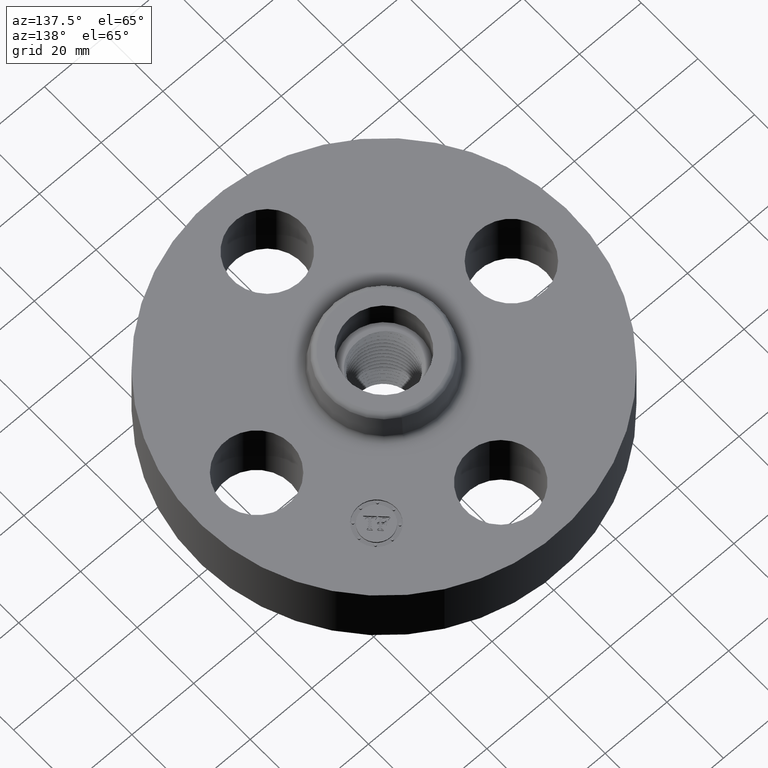
[diagram: clean part render]
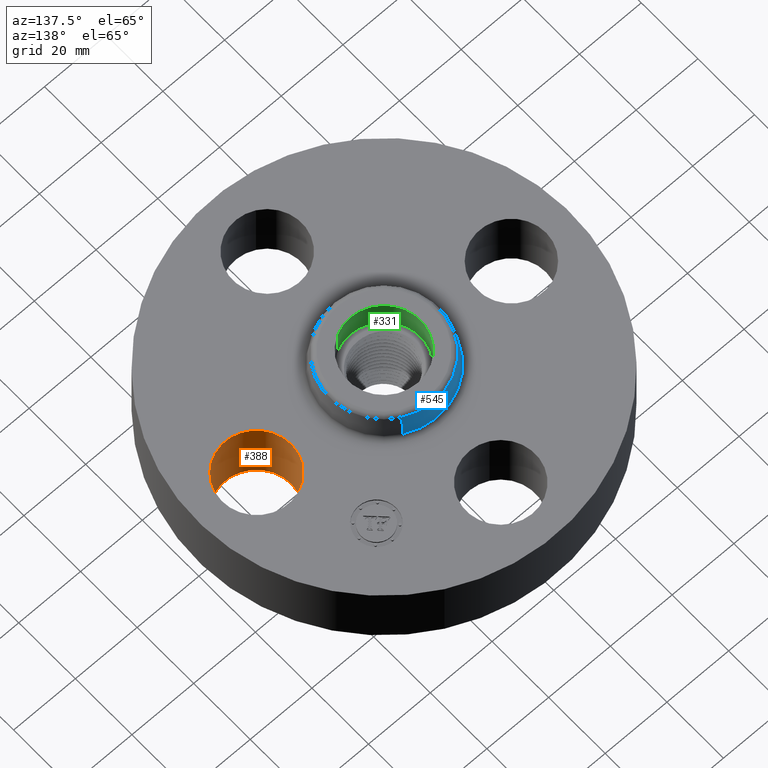
[diagram: same view with three faces highlighted in distinct colors, each labeled with its STEP entity id]
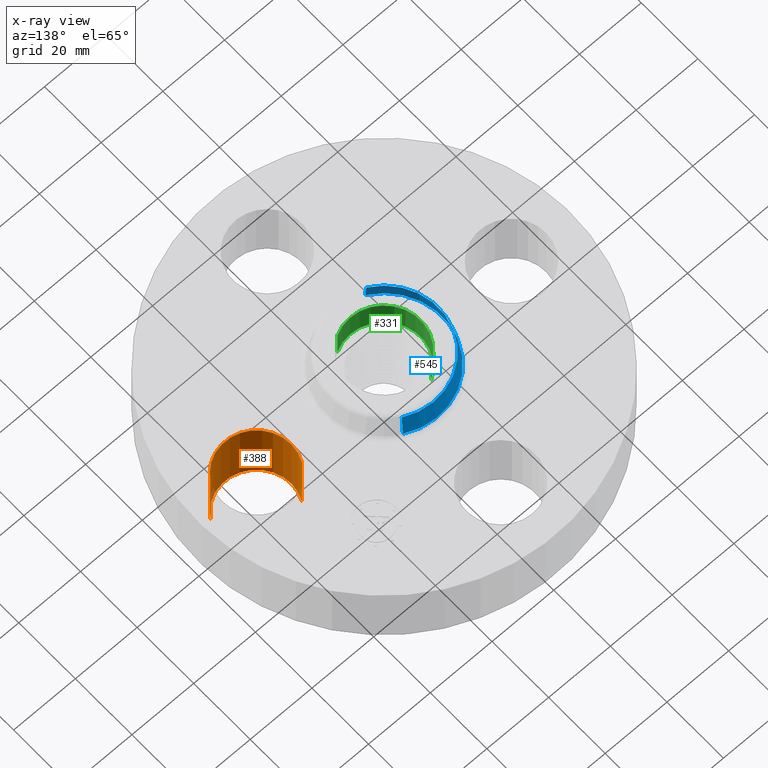
[diagram: x-ray of the same camera — body ghosted, the three highlighted faces saturated]
A machine part, auxiliary view with three faces highlighted in distinct colors.
The next image is the same camera in x-ray (body ghosted, the three faces saturated) — at least one of them is partly hidden behind the body in this view.
Their STEP definitions:

[orange] entity #388 — the highlighted cylindrical surface (partial cylindrical patch) has radius 11.176 mm, axis along (0, -0, -1).
#335=AXIS2_PLACEMENT_3D('Cylinder Axis2P3D',#332,#333,#334) ;
#374=AXIS2_PLACEMENT_3D('Circle Axis2P3D',#372,#373,$) ;
#379=AXIS2_PLACEMENT_3D('Circle Axis2P3D',#377,#378,$) ;
#332=CARTESIAN_POINT('Axis2P3D Location',(1.62500000001,0.,0.87606299213)) ;
#337=CARTESIAN_POINT('Line Origine',(1.23886367277,0.210947236987,0.440000000002)) ;
#341=CARTESIAN_POINT('Vertex',(1.23886367277,0.210947236987,0.)) ;
#343=CARTESIAN_POINT('Vertex',(1.23886367277,0.210947236987,0.880000000004)) ;
#350=CARTESIAN_POINT('Vertex',(2.01113632724,-0.210947236987,0.)) ;
#353=CARTESIAN_POINT('Line Origine',(2.01113632724,-0.210947236987,0.440000000002)) ;
#357=CARTESIAN_POINT('Vertex',(2.01113632724,-0.210947236987,0.880000000004)) ;
#372=CARTESIAN_POINT('Axis2P3D Location',(1.62500000001,0.,0.)) ;
#377=CARTESIAN_POINT('Axis2P3D Location',(1.62500000001,0.,0.880000000004)) ;
#333=DIRECTION('Axis2P3D Direction',(0.,-0.,-0.0393700787402)) ;
#334=DIRECTION('Axis2P3D XDirection',(0.0345504945626,-0.0188750212049,0.)) ;
#338=DIRECTION('Vector Direction',(0.,0.,-0.0393700787402)) ;
#354=DIRECTION('Vector Direction',(0.,0.,-0.0393700787402)) ;
#373=DIRECTION('Axis2P3D Direction',(0.,-0.,-0.0393700787402)) ;
#378=DIRECTION('Axis2P3D Direction',(0.,-0.,-0.0393700787402)) ;
#339=VECTOR('Line Direction',#338,0.0393700787402) ;
#355=VECTOR('Line Direction',#354,0.0393700787402) ;
#383=ORIENTED_EDGE('',*,*,#359,.F.) ;
#384=ORIENTED_EDGE('',*,*,#376,.T.) ;
#385=ORIENTED_EDGE('',*,*,#345,.T.) ;
#386=ORIENTED_EDGE('',*,*,#381,.F.) ;
#388=ADVANCED_FACE('PartBody',(#387),#336,.F.) ;
#375=CIRCLE('generated circle',#374,0.440000000002) ;
#380=CIRCLE('generated circle',#379,0.440000000002) ;
#336=CYLINDRICAL_SURFACE('generated cylinder',#335,0.440000000002) ;
#345=EDGE_CURVE('',#342,#344,#340,.F.) ;
#359=EDGE_CURVE('',#351,#358,#356,.F.) ;
#376=EDGE_CURVE('',#351,#342,#375,.T.) ;
#381=EDGE_CURVE('',#358,#344,#380,.T.) ;
#382=EDGE_LOOP('',(#383,#384,#385,#386)) ;
#387=FACE_OUTER_BOUND('',#382,.T.) ;
#340=LINE('Line',#337,#339) ;
#356=LINE('Line',#353,#355) ;
#342=VERTEX_POINT('',#341) ;
#344=VERTEX_POINT('',#343) ;
#351=VERTEX_POINT('',#350) ;
#358=VERTEX_POINT('',#357) ;

[blue] entity #545 — the highlighted conical surface has half-angle 10 deg.
#493=AXIS2_PLACEMENT_3D('Circle Axis2P3D',#491,#492,$) ;
#506=AXIS2_PLACEMENT_3D('Cone Axis2P3D',#503,#504,#505) ;
#536=AXIS2_PLACEMENT_3D('Circle Axis2P3D',#534,#535,$) ;
#464=CARTESIAN_POINT('Vertex',(0.355377782267,0.650514667009,0.929581109344)) ;
#471=CARTESIAN_POINT('Vertex',(-0.355377782267,-0.650514667009,0.929581109344)) ;
#491=CARTESIAN_POINT('Axis2P3D Location',(0.,0.,0.929581109344)) ;
#503=CARTESIAN_POINT('Axis2P3D Location',(0.,0.,1.20041889066)) ;
#508=CARTESIAN_POINT('Line Origine',(0.343930057281,0.62955974698,1.065)) ;
#512=CARTESIAN_POINT('Vertex',(0.332482332294,0.608604826951,1.20041889066)) ;
#519=CARTESIAN_POINT('Vertex',(-0.332482332294,-0.608604826951,1.20041889066)) ;
#522=CARTESIAN_POINT('Line Origine',(-0.343930057281,-0.62955974698,1.065)) ;
#534=CARTESIAN_POINT('Axis2P3D Location',(0.,0.,1.20041889066)) ;
#492=DIRECTION('Axis2P3D Direction',(0.,0.,-0.0393700787402)) ;
#504=DIRECTION('Axis2P3D Direction',(0.,0.,-0.0393700787402)) ;
#505=DIRECTION('Axis2P3D XDirection',(-0.0188750212049,-0.0345504945626,0.)) ;
#509=DIRECTION('Vector Direction',(0.00327761303565,0.00599963041829,-0.03877195878)) ;
#523=DIRECTION('Vector Direction',(-0.00327761303565,-0.00599963041829,-0.03877195878)) ;
#535=DIRECTION('Axis2P3D Direction',(0.,0.,-0.0393700787402)) ;
#510=VECTOR('Line Direction',#509,0.0393700787402) ;
#524=VECTOR('Line Direction',#523,0.0393700787402) ;
#540=ORIENTED_EDGE('',*,*,#495,.F.) ;
#541=ORIENTED_EDGE('',*,*,#526,.T.) ;
#542=ORIENTED_EDGE('',*,*,#538,.T.) ;
#543=ORIENTED_EDGE('',*,*,#514,.F.) ;
#545=ADVANCED_FACE('PartBody',(#544),#507,.T.) ;
#494=CIRCLE('generated circle',#493,0.741257512693) ;
#537=CIRCLE('generated circle',#536,0.693501504451) ;
#507=CONICAL_SURFACE('Cone',#506,0.693501504451,0.174532925199) ;
#495=EDGE_CURVE('',#472,#465,#494,.T.) ;
#514=EDGE_CURVE('',#465,#513,#511,.F.) ;
#526=EDGE_CURVE('',#472,#520,#525,.F.) ;
#538=EDGE_CURVE('',#520,#513,#537,.T.) ;
#539=EDGE_LOOP('',(#540,#541,#542,#543)) ;
#544=FACE_OUTER_BOUND('',#539,.T.) ;
#511=LINE('Line',#508,#510) ;
#525=LINE('Line',#522,#524) ;
#465=VERTEX_POINT('',#464) ;
#472=VERTEX_POINT('',#471) ;
#513=VERTEX_POINT('',#512) ;
#520=VERTEX_POINT('',#519) ;

[green] entity #331 — the highlighted cylindrical surface (partial cylindrical patch) has radius 11.811 mm, axis along (0, 0, 1).
#42=AXIS2_PLACEMENT_3D('Circle Axis2P3D',#40,#41,$) ;
#292=AXIS2_PLACEMENT_3D('Cylinder Axis2P3D',#289,#290,#291) ;
#322=AXIS2_PLACEMENT_3D('Circle Axis2P3D',#320,#321,$) ;
#40=CARTESIAN_POINT('Axis2P3D Location',(0.,0.,0.880000000004)) ;
#44=CARTESIAN_POINT('Vertex',(-0.222932875452,0.408075891281,0.880000000004)) ;
#46=CARTESIAN_POINT('Vertex',(0.222932875452,-0.408075891281,0.880000000004)) ;
#289=CARTESIAN_POINT('Axis2P3D Location',(0.,0.,0.880000000004)) ;
#298=CARTESIAN_POINT('Vertex',(-0.222932875452,0.408075891281,1.25000000001)) ;
#300=CARTESIAN_POINT('Vertex',(0.222932875452,-0.408075891281,1.25000000001)) ;
#303=CARTESIAN_POINT('Line Origine',(-0.222932875452,0.408075891281,1.065)) ;
#308=CARTESIAN_POINT('Line Origine',(0.222932875452,-0.408075891281,1.065)) ;
#320=CARTESIAN_POINT('Axis2P3D Location',(0.,0.,1.25000000001)) ;
#41=DIRECTION('Axis2P3D Direction',(0.,0.,0.0393700787402)) ;
#290=DIRECTION('Axis2P3D Direction',(0.,0.,0.0393700787402)) ;
#291=DIRECTION('Axis2P3D XDirection',(-0.0188750212049,0.0345504945626,0.)) ;
#304=DIRECTION('Vector Direction',(0.,0.,0.0393700787402)) ;
#309=DIRECTION('Vector Direction',(0.,0.,0.0393700787402)) ;
#321=DIRECTION('Axis2P3D Direction',(0.,0.,0.0393700787402)) ;
#305=VECTOR('Line Direction',#304,0.0393700787402) ;
#310=VECTOR('Line Direction',#309,0.0393700787402) ;
#326=ORIENTED_EDGE('',*,*,#324,.F.) ;
#327=ORIENTED_EDGE('',*,*,#312,.F.) ;
#328=ORIENTED_EDGE('',*,*,#48,.F.) ;
#329=ORIENTED_EDGE('',*,*,#307,.T.) ;
#331=ADVANCED_FACE('PartBody',(#330),#293,.F.) ;
#43=CIRCLE('generated circle',#42,0.465000000002) ;
#323=CIRCLE('generated circle',#322,0.465000000002) ;
#293=CYLINDRICAL_SURFACE('generated cylinder',#292,0.465000000002) ;
#48=EDGE_CURVE('',#45,#47,#43,.T.) ;
#307=EDGE_CURVE('',#45,#299,#306,.T.) ;
#312=EDGE_CURVE('',#47,#301,#311,.T.) ;
#324=EDGE_CURVE('',#301,#299,#323,.F.) ;
#325=EDGE_LOOP('',(#326,#327,#328,#329)) ;
#330=FACE_OUTER_BOUND('',#325,.T.) ;
#306=LINE('Line',#303,#305) ;
#311=LINE('Line',#308,#310) ;
#45=VERTEX_POINT('',#44) ;
#47=VERTEX_POINT('',#46) ;
#299=VERTEX_POINT('',#298) ;
#301=VERTEX_POINT('',#300) ;